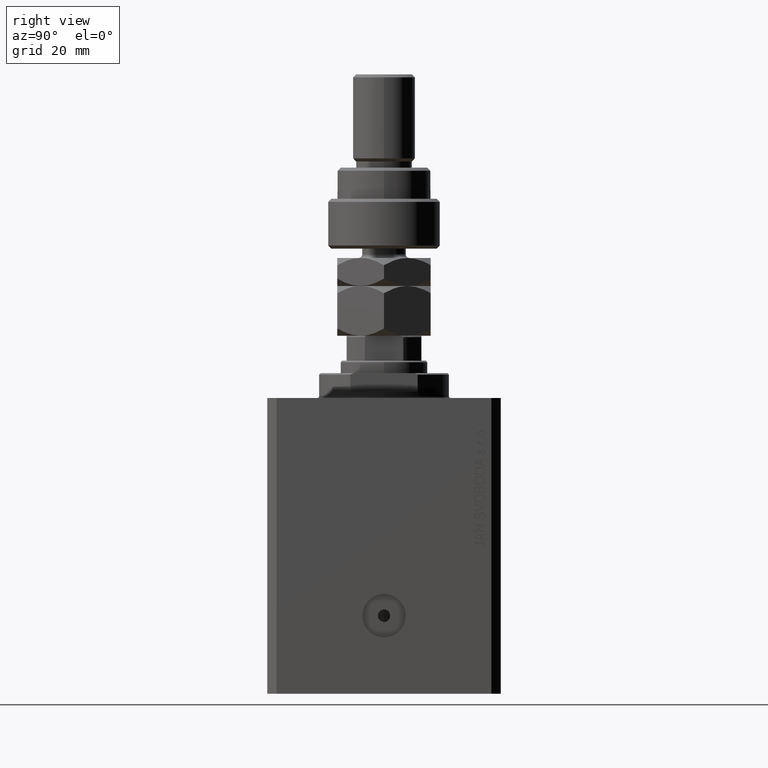
[diagram: clean part render]
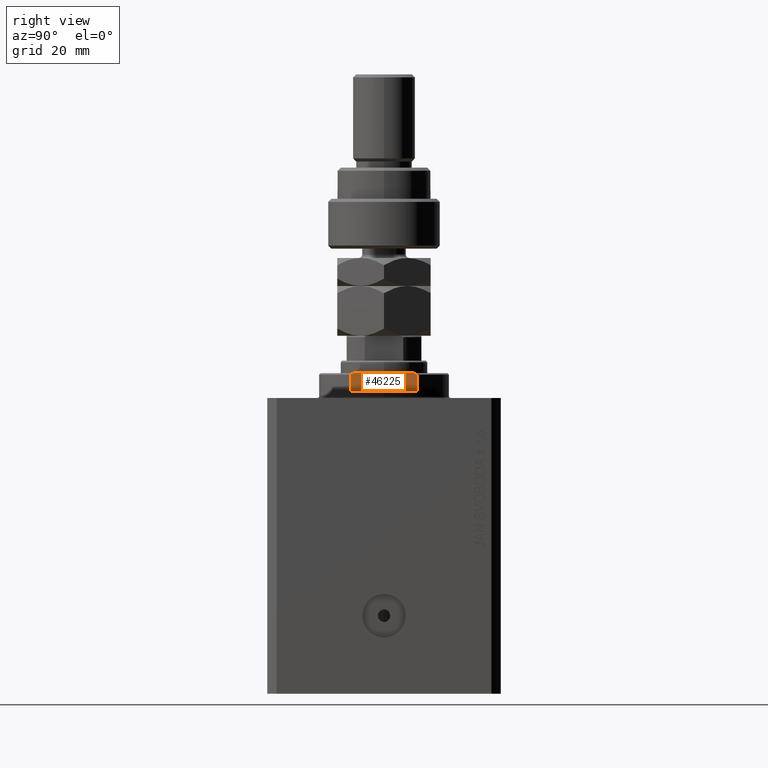
[diagram: same view with one face highlighted and labeled with its STEP entity id]
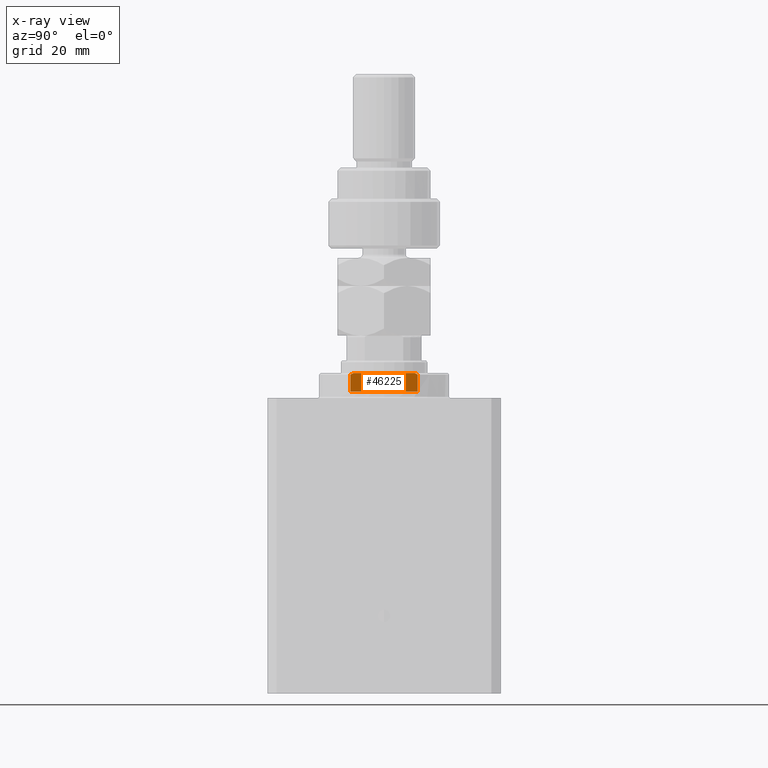
[diagram: x-ray of the same camera — body ghosted, the highlighted face saturated]
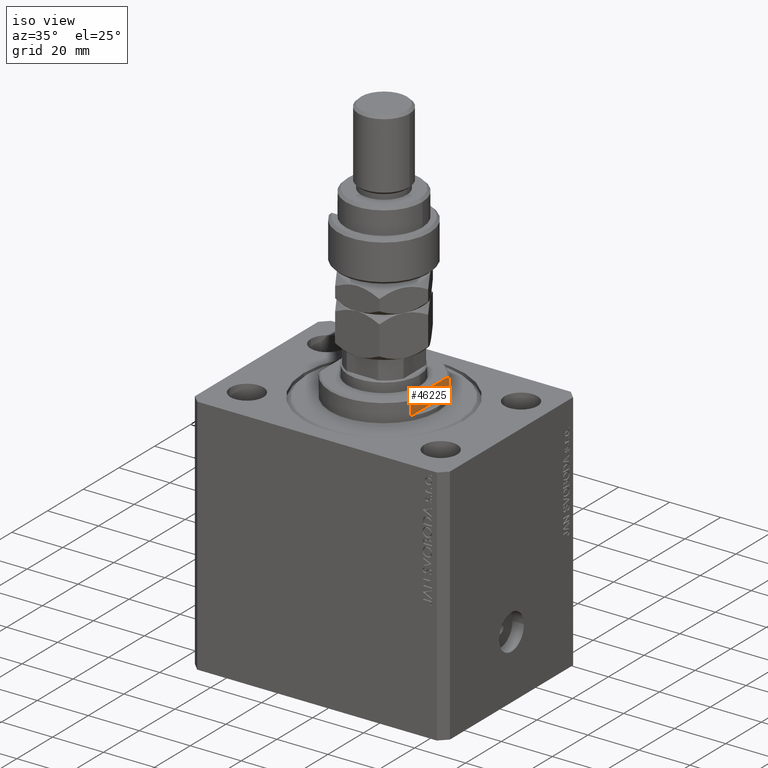
[diagram: same view with one face highlighted and labeled with its STEP entity id]
A machine part, right view. The second image highlights one B-rep face of the part: STEP entity #46225.
The next image is the same camera in x-ray: the body ghosted, the highlighted face saturated — about 0% of this face is hidden behind the body in this view.
A second angle (iso view) of the same face is appended — the face is thin or edge-on in the first view.
In plain terms, the highlighted planar face has unit normal (-1, 0, 0).
Its self-contained STEP definition (entity closure, byte-faithful):
#717 = VERTEX_POINT ( 'NONE', #28419 ) ;
#729 = EDGE_CURVE ( 'NONE', #1090, #22679, #43032, .T. ) ;
#1090 = VERTEX_POINT ( 'NONE', #40068 ) ;
#2055 = ORIENTED_EDGE ( 'NONE', *, *, #34872, .F. ) ;
#2248 = CARTESIAN_POINT ( 'NONE',  ( -18.00000000000000000, -41.24318125460256113, -8.000000000000000000 ) ) ;
#2751 = CARTESIAN_POINT ( 'NONE',  ( -18.00000000000000000, 10.48362233087180506, -7.671537447634650064 ) ) ;
#2984 = VECTOR ( 'NONE', #30583, 1000.000000000000000 ) ;
#4180 = DIRECTION ( 'NONE',  ( -0.000000000000000000, -1.000000000000000000, -0.000000000000000000 ) ) ;
#4688 = B_SPLINE_CURVE_WITH_KNOTS ( 'NONE', 3,
 ( #36336, #32278, #18126, #25323 ),
 .UNSPECIFIED., .F., .F.,
 ( 4, 4 ),
 ( 0.06217926064546155235, 0.06331210020888052015 ),
 .UNSPECIFIED. ) ;
#4924 = EDGE_CURVE ( 'NONE', #1090, #25934, #38146, .T. ) ;
#7298 = CARTESIAN_POINT ( 'NONE',  ( -18.00000000000000000, 9.810708435174332109, -8.000000000000000000 ) ) ;
#9802 = LINE ( 'NONE', #46948, #13905 ) ;
#10669 = CARTESIAN_POINT ( 'NONE',  ( -18.00000000000000000, 10.81665382639197048, -7.500000000000016875 ) ) ;
#12792 = ORIENTED_EDGE ( 'NONE', *, *, #42096, .F. ) ;
#13590 = AXIS2_PLACEMENT_3D ( 'NONE', #15023, #17919, #40178 ) ;
#13905 = VECTOR ( 'NONE', #46250, 1000.000000000000000 ) ;
#15023 = CARTESIAN_POINT ( 'NONE',  ( -18.00000000000000000, -41.24318125460256113, -2.000000000000000000 ) ) ;
#16665 = LINE ( 'NONE', #2248, #2984 ) ;
#17256 = EDGE_CURVE ( 'NONE', #717, #40398, #4688, .T. ) ;
#17629 = CARTESIAN_POINT ( 'NONE',  ( -18.00000000000000000, 10.81665382639197048, -8.000000000000000000 ) ) ;
#17919 = DIRECTION ( 'NONE',  ( 1.000000000000000000, 0.000000000000000000, 0.000000000000000000 ) ) ;
#18126 = CARTESIAN_POINT ( 'NONE',  ( -18.00000000000000000, -10.48405973417029635, -7.671312150488895476 ) ) ;
#19239 = VERTEX_POINT ( 'NONE', #31009 ) ;
#20134 = ORIENTED_EDGE ( 'NONE', *, *, #23593, .T. ) ;
#21033 = VECTOR ( 'NONE', #4180, 1000.000000000000000 ) ;
#21972 = ORIENTED_EDGE ( 'NONE', *, *, #17256, .T. ) ;
#22658 = CARTESIAN_POINT ( 'NONE',  ( -18.00000000000000000, -41.24318125460256113, -2.000000000000000000 ) ) ;
#22679 = VERTEX_POINT ( 'NONE', #27378 ) ;
#23593 = EDGE_CURVE ( 'NONE', #25934, #717, #16665, .T. ) ;
#25323 = CARTESIAN_POINT ( 'NONE',  ( -18.00000000000000000, -10.81665382639197048, -7.500000000000017764 ) ) ;
#25583 = FACE_OUTER_BOUND ( 'NONE', #43594, .T. ) ;
#25934 = VERTEX_POINT ( 'NONE', #39593 ) ;
#27378 = CARTESIAN_POINT ( 'NONE',  ( -18.00000000000000000, 10.81665382639197048, -2.000000000000000000 ) ) ;
#28419 = CARTESIAN_POINT ( 'NONE',  ( -18.00000000000000000, -9.810708435174332109, -8.000000000000000000 ) ) ;
#28710 = PLANE ( 'NONE',  #13590 ) ;
#29565 = VECTOR ( 'NONE', #46870, 1000.000000000000000 ) ;
#30583 = DIRECTION ( 'NONE',  ( -0.000000000000000000, -1.000000000000000000, -0.000000000000000000 ) ) ;
#31009 = CARTESIAN_POINT ( 'NONE',  ( -18.00000000000000000, -10.81665382639197048, -2.000000000000000000 ) ) ;
#32278 = CARTESIAN_POINT ( 'NONE',  ( -18.00000000000000000, -10.14885752588745049, -7.838171603092474626 ) ) ;
#34872 = EDGE_CURVE ( 'NONE', #19239, #40398, #9802, .T. ) ;
#36336 = CARTESIAN_POINT ( 'NONE',  ( -18.00000000000000000, -9.810708435174332109, -8.000000000000000000 ) ) ;
#36485 = CARTESIAN_POINT ( 'NONE',  ( -18.00000000000000000, -10.81665382639197048, -7.500000000000017764 ) ) ;
#37506 = LINE ( 'NONE', #22658, #21033 ) ;
#37967 = ORIENTED_EDGE ( 'NONE', *, *, #729, .F. ) ;
#38146 = B_SPLINE_CURVE_WITH_KNOTS ( 'NONE', 3,
 ( #10669, #2751, #40135, #7298 ),
 .UNSPECIFIED., .F., .F.,
 ( 4, 4 ),
 ( 0.04062426037072789514, 0.04174950919407467709 ),
 .UNSPECIFIED. ) ;
#39593 = CARTESIAN_POINT ( 'NONE',  ( -18.00000000000000000, 9.810708435174332109, -8.000000000000000000 ) ) ;
#40068 = CARTESIAN_POINT ( 'NONE',  ( -18.00000000000000000, 10.81665382639197048, -7.500000000000016875 ) ) ;
#40135 = CARTESIAN_POINT ( 'NONE',  ( -18.00000000000000000, 10.14839560199154533, -7.838392666539328424 ) ) ;
#40178 = DIRECTION ( 'NONE',  ( 0.000000000000000000, 0.000000000000000000, -1.000000000000000000 ) ) ;
#40398 = VERTEX_POINT ( 'NONE', #36485 ) ;
#42096 = EDGE_CURVE ( 'NONE', #22679, #19239, #37506, .T. ) ;
#43032 = LINE ( 'NONE', #17629, #29565 ) ;
#43187 = ORIENTED_EDGE ( 'NONE', *, *, #4924, .T. ) ;
#43594 = EDGE_LOOP ( 'NONE', ( #43187, #20134, #21972, #2055, #12792, #37967 ) ) ;
#46225 = ADVANCED_FACE ( 'NONE', ( #25583 ), #28710, .F. ) ;
#46250 = DIRECTION ( 'NONE',  ( 0.000000000000000000, 0.000000000000000000, -1.000000000000000000 ) ) ;
#46870 = DIRECTION ( 'NONE',  ( -0.000000000000000000, -0.000000000000000000, 1.000000000000000000 ) ) ;
#46948 = CARTESIAN_POINT ( 'NONE',  ( -18.00000000000000000, -10.81665382639197048, -8.000000000000000000 ) ) ;